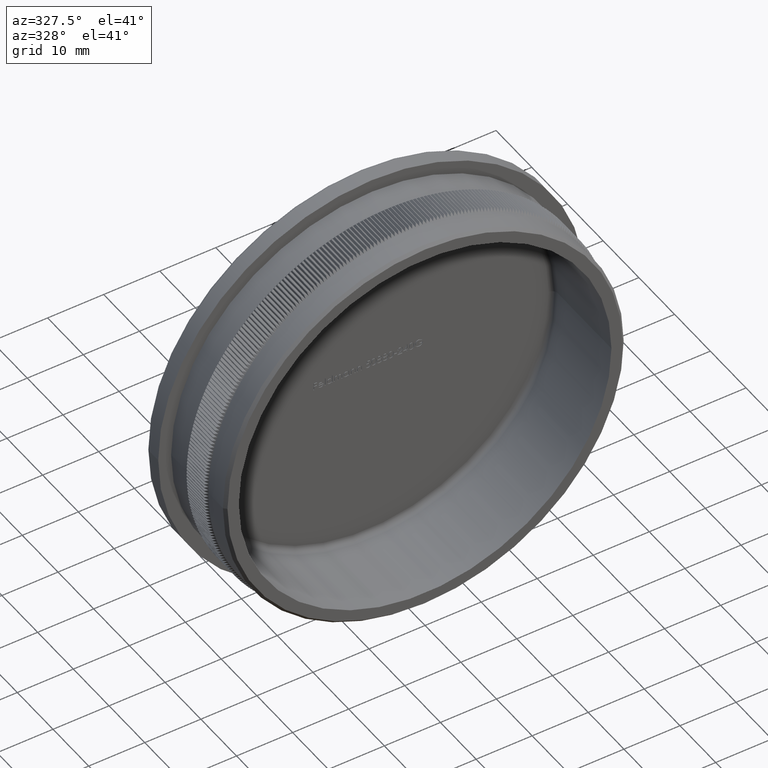
[diagram: clean part render]
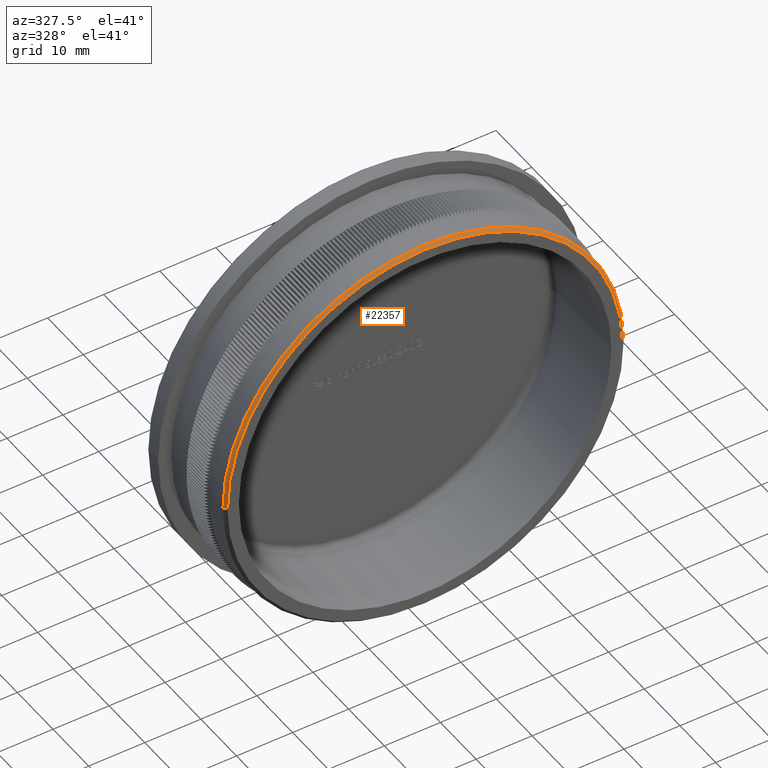
[diagram: same view with one face highlighted and labeled with its STEP entity id]
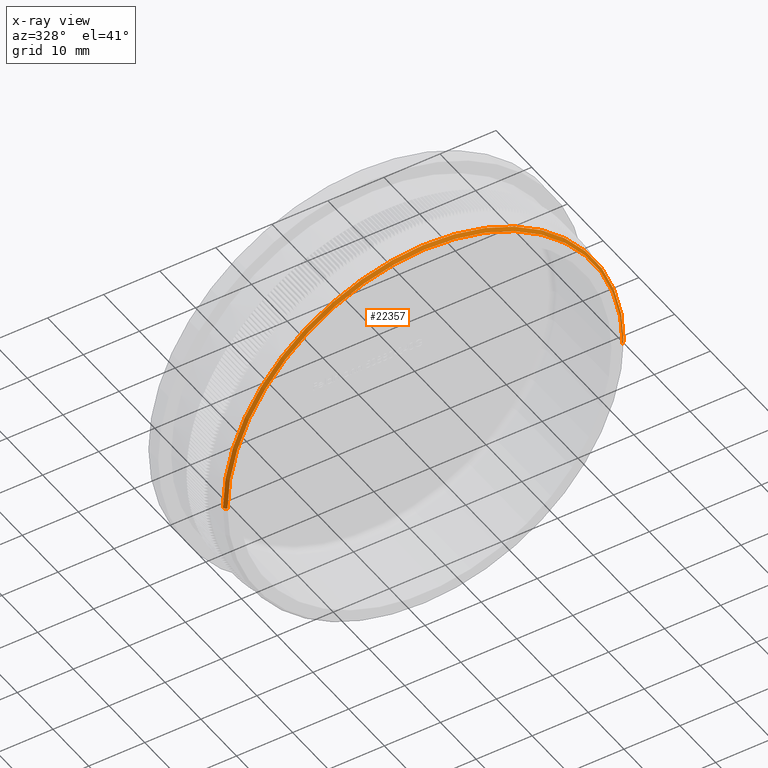
[diagram: x-ray of the same camera — body ghosted, the highlighted face saturated]
A machine part, auxiliary view. The second image highlights one B-rep face of the part: STEP entity #22357.
The next image is the same camera in x-ray: the body ghosted, the highlighted face saturated — about 0% of this face is hidden behind the body in this view.
In plain terms, the highlighted conical surface has half-angle 45 deg.
Its self-contained STEP definition (entity closure, byte-faithful):
#1512 = AXIS2_PLACEMENT_3D ( 'NONE', #21998, #42440, #11708 ) ;
#5210 = CIRCLE ( 'NONE', #1512, 35.25000000000004300 ) ;
#8611 = VERTEX_POINT ( 'NONE', #34785 ) ;
#10012 = DIRECTION ( 'NONE',  ( -3.245114972974590400E-015, -1.000000000000000000, -0.0000000000000000000 ) ) ;
#10428 = LINE ( 'NONE', #52508, #48914 ) ;
#11012 = EDGE_CURVE ( 'NONE', #8611, #28148, #29954, .T. ) ;
#11708 = DIRECTION ( 'NONE',  ( 1.000000000000000000, -3.245114972974590800E-015, 0.0000000000000000000 ) ) ;
#12191 = DIRECTION ( 'NONE',  ( 0.7071067811865497900, 0.7071067811865452400, 8.659560562354931600E-017 ) ) ;
#13916 = DIRECTION ( 'NONE',  ( 3.245114972974590400E-015, 1.000000000000000000, 0.0000000000000000000 ) ) ;
#14752 = CARTESIAN_POINT ( 'NONE',  ( -35.75000000000009200, 0.5000000000002309300, 4.378112306951795000E-015 ) ) ;
#16545 = EDGE_CURVE ( 'NONE', #8611, #42244, #5210, .T. ) ;
#19424 = EDGE_CURVE ( 'NONE', #42244, #49026, #10428, .T. ) ;
#19780 = CIRCLE ( 'NONE', #20523, 35.75000000000004300 ) ;
#20523 = AXIS2_PLACEMENT_3D ( 'NONE', #25797, #10012, #35866 ) ;
#21869 = ORIENTED_EDGE ( 'NONE', *, *, #16545, .F. ) ;
#21998 = CARTESIAN_POINT ( 'NONE',  ( -5.192183956759305600E-014, 1.144917494144692700E-013, 0.0000000000000000000 ) ) ;
#22058 = ORIENTED_EDGE ( 'NONE', *, *, #11012, .T. ) ;
#22357 = ADVANCED_FACE ( 'NONE', ( #61249 ), #49494, .T. ) ;
#23518 = DIRECTION ( 'NONE',  ( -1.000000000000000000, 3.245114972974590000E-015, 0.0000000000000000000 ) ) ;
#24174 = CARTESIAN_POINT ( 'NONE',  ( -5.192183956759305600E-014, 1.144917494144692700E-013, 0.0000000000000000000 ) ) ;
#25797 = CARTESIAN_POINT ( 'NONE',  ( -5.029928208110575700E-014, 0.5000000000001149100, 0.0000000000000000000 ) ) ;
#28148 = VERTEX_POINT ( 'NONE', #34615 ) ;
#28336 = DIRECTION ( 'NONE',  ( -0.7071067811865451300, 0.7071067811865499000, 0.0000000000000000000 ) ) ;
#29954 = LINE ( 'NONE', #62442, #48037 ) ;
#34615 = CARTESIAN_POINT ( 'NONE',  ( 35.75000000000000000, 0.4999999999999989500, 0.0000000000000000000 ) ) ;
#34785 = CARTESIAN_POINT ( 'NONE',  ( 35.25000000000000000, 1.014466171148151100E-016, 4.347496136973109600E-015 ) ) ;
#35866 = DIRECTION ( 'NONE',  ( 1.000000000000000000, -3.245024684082484900E-015, 0.0000000000000000000 ) ) ;
#42244 = VERTEX_POINT ( 'NONE', #54680 ) ;
#42440 = DIRECTION ( 'NONE',  ( -3.245114972974590400E-015, -1.000000000000000000, -0.0000000000000000000 ) ) ;
#46612 = ORIENTED_EDGE ( 'NONE', *, *, #49854, .T. ) ;
#47505 = EDGE_LOOP ( 'NONE', ( #21869, #22058, #46612, #61740 ) ) ;
#48037 = VECTOR ( 'NONE', #12191, 1000.000000000000000 ) ;
#48914 = VECTOR ( 'NONE', #28336, 1000.000000000000100 ) ;
#49026 = VERTEX_POINT ( 'NONE', #14752 ) ;
#49494 = CONICAL_SURFACE ( 'NONE', #58749, 35.25000000000004300, 0.7853981633974482800 ) ;
#49854 = EDGE_CURVE ( 'NONE', #28148, #49026, #19780, .T. ) ;
#52508 = CARTESIAN_POINT ( 'NONE',  ( -35.25000000000009200, 2.288820522118237100E-013, 0.0000000000000000000 ) ) ;
#54680 = CARTESIAN_POINT ( 'NONE',  ( -35.25000000000009200, 2.288820522118237100E-013, 0.0000000000000000000 ) ) ;
#58749 = AXIS2_PLACEMENT_3D ( 'NONE', #24174, #13916, #23518 ) ;
#61249 = FACE_OUTER_BOUND ( 'NONE', #47505, .T. ) ;
#61740 = ORIENTED_EDGE ( 'NONE', *, *, #19424, .F. ) ;
#62442 = CARTESIAN_POINT ( 'NONE',  ( 35.25000000000000000, 1.014466171148151100E-016, 4.316879966994425800E-015 ) ) ;